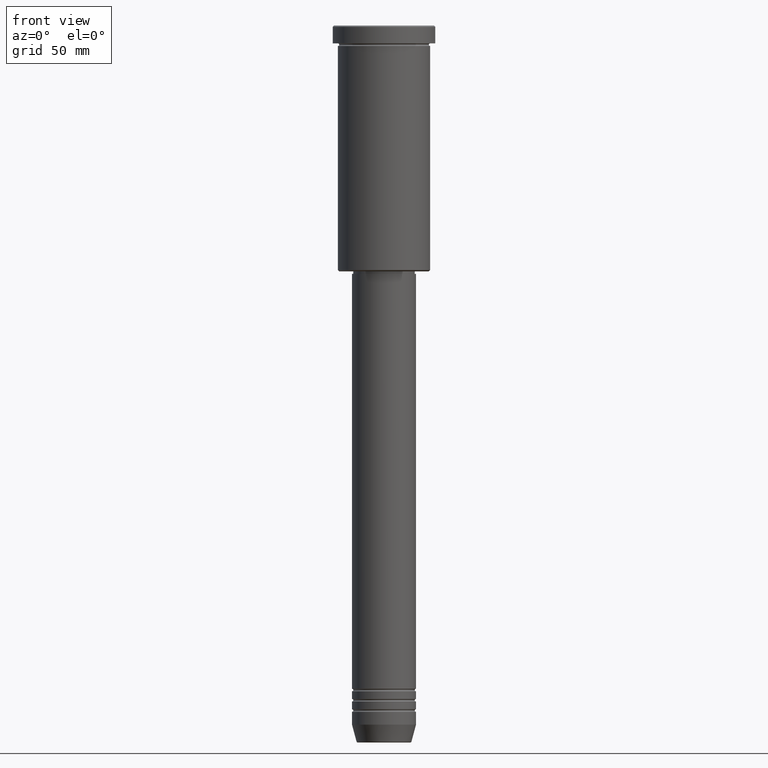
[diagram: clean part render]
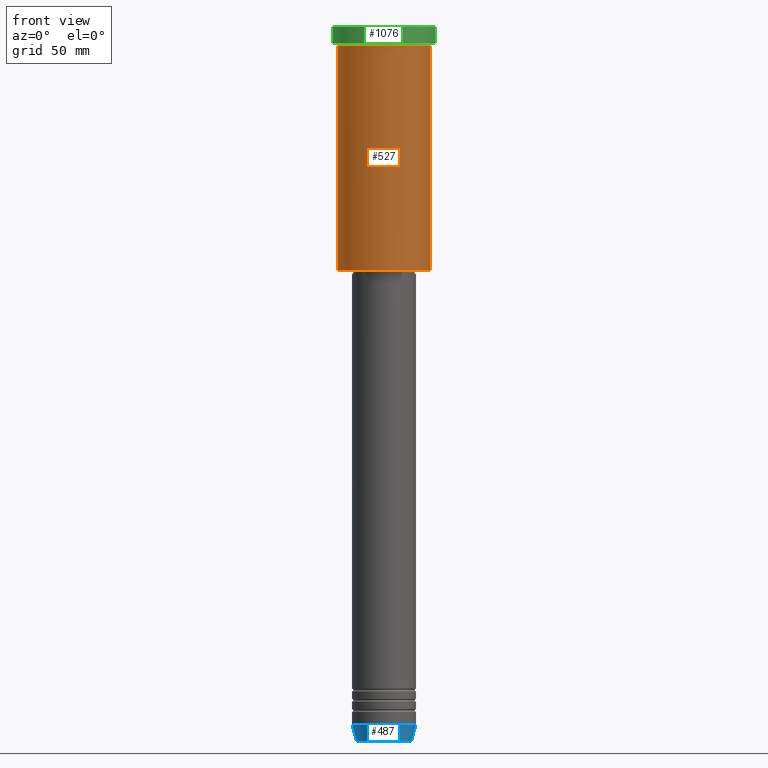
[diagram: same view with three faces highlighted in distinct colors, each labeled with its STEP entity id]
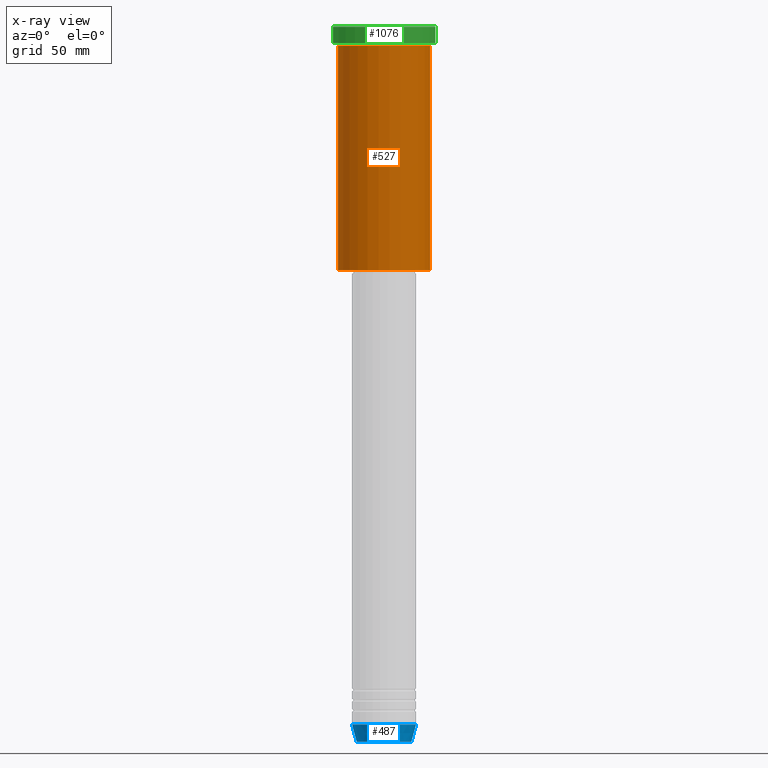
[diagram: x-ray of the same camera — body ghosted, the three highlighted faces saturated]
A machine part, front view with three faces highlighted in distinct colors.
The next image is the same camera in x-ray (body ghosted, the three faces saturated) — at least one of them is partly hidden behind the body in this view.
Their STEP definitions:

[orange] entity #527 — the highlighted cylindrical surface (partial cylindrical patch) has radius 18 mm, axis along (-0, -0, 1).
#6 = EDGE_CURVE ( 'NONE', #421, #385, #611, .T. ) ;
#16 = ORIENTED_EDGE ( 'NONE', *, *, #1075, .T. ) ;
#42 = EDGE_CURVE ( 'NONE', #421, #940, #1145, .T. ) ;
#56 = DIRECTION ( 'NONE',  ( 1.000000000000000000, 0.000000000000000000, 0.000000000000000000 ) ) ;
#128 = EDGE_LOOP ( 'NONE', ( #825, #354, #16, #582 ) ) ;
#146 = CARTESIAN_POINT ( 'NONE',  ( 18.00000000000000000, 0.000000000000000000, 0.000000000000000000 ) ) ;
#197 = CARTESIAN_POINT ( 'NONE',  ( 18.00000000000000000, 0.000000000000000000, -7.999999999999996447 ) ) ;
#253 = CARTESIAN_POINT ( 'NONE',  ( 0.000000000000000000, 0.000000000000000000, -95.49999999999990052 ) ) ;
#262 = DIRECTION ( 'NONE',  ( -0.000000000000000000, -0.000000000000000000, 1.000000000000000000 ) ) ;
#280 = AXIS2_PLACEMENT_3D ( 'NONE', #674, #767, #56 ) ;
#331 = CARTESIAN_POINT ( 'NONE',  ( -18.00000000000000000, 2.204364238465235428E-15, 0.000000000000000000 ) ) ;
#354 = ORIENTED_EDGE ( 'NONE', *, *, #6, .T. ) ;
#378 = CARTESIAN_POINT ( 'NONE',  ( -18.00000000000000000, 2.204364238465235428E-15, -7.999999999999996447 ) ) ;
#385 = VERTEX_POINT ( 'NONE', #622 ) ;
#392 = VECTOR ( 'NONE', #609, 1000.000000000000000 ) ;
#421 = VERTEX_POINT ( 'NONE', #918 ) ;
#516 = DIRECTION ( 'NONE',  ( -0.000000000000000000, -0.000000000000000000, 1.000000000000000000 ) ) ;
#527 = ADVANCED_FACE ( 'NONE', ( #682 ), #949, .T. ) ;
#582 = ORIENTED_EDGE ( 'NONE', *, *, #850, .F. ) ;
#609 = DIRECTION ( 'NONE',  ( -0.000000000000000000, -0.000000000000000000, 1.000000000000000000 ) ) ;
#611 = CIRCLE ( 'NONE', #902, 18.00000000000000000 ) ;
#619 = DIRECTION ( 'NONE',  ( -0.000000000000000000, -0.000000000000000000, 1.000000000000000000 ) ) ;
#622 = CARTESIAN_POINT ( 'NONE',  ( 18.00000000000000000, 0.000000000000000000, -95.49999999999990052 ) ) ;
#674 = CARTESIAN_POINT ( 'NONE',  ( 0.000000000000000000, 0.000000000000000000, 0.000000000000000000 ) ) ;
#682 = FACE_OUTER_BOUND ( 'NONE', #128, .T. ) ;
#767 = DIRECTION ( 'NONE',  ( -0.000000000000000000, -0.000000000000000000, 1.000000000000000000 ) ) ;
#795 = AXIS2_PLACEMENT_3D ( 'NONE', #811, #619, #1066 ) ;
#811 = CARTESIAN_POINT ( 'NONE',  ( 0.000000000000000000, 0.000000000000000000, -7.999999999999996447 ) ) ;
#825 = ORIENTED_EDGE ( 'NONE', *, *, #42, .F. ) ;
#850 = EDGE_CURVE ( 'NONE', #940, #908, #1158, .T. ) ;
#895 = DIRECTION ( 'NONE',  ( -1.000000000000000000, 0.000000000000000000, 0.000000000000000000 ) ) ;
#902 = AXIS2_PLACEMENT_3D ( 'NONE', #253, #262, #895 ) ;
#908 = VERTEX_POINT ( 'NONE', #197 ) ;
#918 = CARTESIAN_POINT ( 'NONE',  ( -18.00000000000000000, 2.204364238465235428E-15, -95.49999999999990052 ) ) ;
#940 = VERTEX_POINT ( 'NONE', #378 ) ;
#949 = CYLINDRICAL_SURFACE ( 'NONE', #280, 18.00000000000000000 ) ;
#1066 = DIRECTION ( 'NONE',  ( 1.000000000000000000, 0.000000000000000000, 0.000000000000000000 ) ) ;
#1075 = EDGE_CURVE ( 'NONE', #385, #908, #1147, .T. ) ;
#1145 = LINE ( 'NONE', #331, #392 ) ;
#1147 = LINE ( 'NONE', #146, #1178 ) ;
#1158 = CIRCLE ( 'NONE', #795, 18.00000000000000000 ) ;
#1178 = VECTOR ( 'NONE', #516, 1000.000000000000000 ) ;

[blue] entity #487 — the highlighted conical surface has half-angle 15 deg.
#3 = ORIENTED_EDGE ( 'NONE', *, *, #591, .F. ) ;
#49 = ORIENTED_EDGE ( 'NONE', *, *, #1053, .T. ) ;
#138 = ORIENTED_EDGE ( 'NONE', *, *, #552, .T. ) ;
#152 = CARTESIAN_POINT ( 'NONE',  ( -12.50000000000000000, 1.530808498934191521E-15, -273.0000000000000000 ) ) ;
#161 = DIRECTION ( 'NONE',  ( 0.2588190451025213501, 0.000000000000000000, 0.9659258262890680902 ) ) ;
#239 = CARTESIAN_POINT ( 'NONE',  ( 0.000000000000000000, 0.000000000000000000, -279.6294095225512706 ) ) ;
#267 = CARTESIAN_POINT ( 'NONE',  ( 0.000000000000000000, 0.000000000000000000, -273.0000000000000000 ) ) ;
#303 = VERTEX_POINT ( 'NONE', #1148 ) ;
#304 = ORIENTED_EDGE ( 'NONE', *, *, #353, .F. ) ;
#312 = CARTESIAN_POINT ( 'NONE',  ( 12.50000000000000000, 0.000000000000000000, -273.0000000000000000 ) ) ;
#353 = EDGE_CURVE ( 'NONE', #303, #928, #1060, .T. ) ;
#375 = CIRCLE ( 'NONE', #632, 12.50000000000000000 ) ;
#410 = LINE ( 'NONE', #698, #634 ) ;
#487 = ADVANCED_FACE ( 'NONE', ( #1078 ), #661, .T. ) ;
#494 = DIRECTION ( 'NONE',  ( -0.000000000000000000, -0.000000000000000000, 1.000000000000000000 ) ) ;
#534 = AXIS2_PLACEMENT_3D ( 'NONE', #239, #776, #670 ) ;
#552 = EDGE_CURVE ( 'NONE', #303, #993, #885, .T. ) ;
#591 = EDGE_CURVE ( 'NONE', #928, #600, #375, .T. ) ;
#600 = VERTEX_POINT ( 'NONE', #312 ) ;
#632 = AXIS2_PLACEMENT_3D ( 'NONE', #934, #494, #857 ) ;
#634 = VECTOR ( 'NONE', #161, 1000.000000000000000 ) ;
#661 = CONICAL_SURFACE ( 'NONE', #939, 12.50000000000000000, 0.2617993877991500740 ) ;
#670 = DIRECTION ( 'NONE',  ( 1.000000000000000000, 0.000000000000000000, 0.000000000000000000 ) ) ;
#698 = CARTESIAN_POINT ( 'NONE',  ( 12.50000000000000000, 0.000000000000000000, -273.0000000000000000 ) ) ;
#723 = EDGE_LOOP ( 'NONE', ( #304, #138, #49, #3 ) ) ;
#776 = DIRECTION ( 'NONE',  ( -0.000000000000000000, -0.000000000000000000, 1.000000000000000000 ) ) ;
#797 = DIRECTION ( 'NONE',  ( -0.2588190451025213501, 3.169619151431772337E-17, 0.9659258262890680902 ) ) ;
#823 = CARTESIAN_POINT ( 'NONE',  ( 10.72365507213719127, 0.000000000000000000, -279.6294095225512706 ) ) ;
#842 = DIRECTION ( 'NONE',  ( 1.000000000000000000, 0.000000000000000000, 0.000000000000000000 ) ) ;
#857 = DIRECTION ( 'NONE',  ( 1.000000000000000000, 0.000000000000000000, 0.000000000000000000 ) ) ;
#885 = CIRCLE ( 'NONE', #534, 10.72365507213719127 ) ;
#921 = VECTOR ( 'NONE', #797, 1000.000000000000000 ) ;
#923 = DIRECTION ( 'NONE',  ( -0.000000000000000000, -0.000000000000000000, 1.000000000000000000 ) ) ;
#928 = VERTEX_POINT ( 'NONE', #1017 ) ;
#934 = CARTESIAN_POINT ( 'NONE',  ( 0.000000000000000000, 0.000000000000000000, -273.0000000000000000 ) ) ;
#939 = AXIS2_PLACEMENT_3D ( 'NONE', #267, #923, #842 ) ;
#993 = VERTEX_POINT ( 'NONE', #823 ) ;
#1017 = CARTESIAN_POINT ( 'NONE',  ( -12.50000000000000000, 1.530808498934191521E-15, -273.0000000000000000 ) ) ;
#1053 = EDGE_CURVE ( 'NONE', #993, #600, #410, .T. ) ;
#1060 = LINE ( 'NONE', #152, #921 ) ;
#1078 = FACE_OUTER_BOUND ( 'NONE', #723, .T. ) ;
#1148 = CARTESIAN_POINT ( 'NONE',  ( -10.72365507213719127, 1.422038742429750516E-15, -279.6294095225512706 ) ) ;

[green] entity #1076 — the highlighted cylindrical surface (partial cylindrical patch) has radius 20 mm, axis along (-0, -0, 1).
#13 = CIRCLE ( 'NONE', #831, 20.00000000000000000 ) ;
#25 = CARTESIAN_POINT ( 'NONE',  ( 20.00000000000000000, 0.000000000000000000, 0.000000000000000000 ) ) ;
#34 = CARTESIAN_POINT ( 'NONE',  ( 20.00000000000000000, 0.000000000000000000, -6.999999999999995559 ) ) ;
#57 = DIRECTION ( 'NONE',  ( -0.000000000000000000, -0.000000000000000000, 1.000000000000000000 ) ) ;
#112 = DIRECTION ( 'NONE',  ( -0.000000000000000000, -0.000000000000000000, 1.000000000000000000 ) ) ;
#141 = CYLINDRICAL_SURFACE ( 'NONE', #281, 20.00000000000000000 ) ;
#168 = EDGE_LOOP ( 'NONE', ( #433, #1022, #1117, #503 ) ) ;
#213 = LINE ( 'NONE', #25, #888 ) ;
#268 = LINE ( 'NONE', #1172, #555 ) ;
#281 = AXIS2_PLACEMENT_3D ( 'NONE', #865, #57, #423 ) ;
#294 = DIRECTION ( 'NONE',  ( 1.000000000000000000, 0.000000000000000000, 0.000000000000000000 ) ) ;
#387 = CARTESIAN_POINT ( 'NONE',  ( -20.00000000000000000, 2.449293598294706513E-15, -6.999999999999995559 ) ) ;
#423 = DIRECTION ( 'NONE',  ( 1.000000000000000000, 0.000000000000000000, 0.000000000000000000 ) ) ;
#433 = ORIENTED_EDGE ( 'NONE', *, *, #821, .F. ) ;
#470 = DIRECTION ( 'NONE',  ( 1.000000000000000000, 0.000000000000000000, 0.000000000000000000 ) ) ;
#480 = VERTEX_POINT ( 'NONE', #387 ) ;
#503 = ORIENTED_EDGE ( 'NONE', *, *, #626, .T. ) ;
#555 = VECTOR ( 'NONE', #894, 1000.000000000000000 ) ;
#568 = DIRECTION ( 'NONE',  ( -0.000000000000000000, -0.000000000000000000, 1.000000000000000000 ) ) ;
#626 = EDGE_CURVE ( 'NONE', #1154, #883, #13, .T. ) ;
#628 = CARTESIAN_POINT ( 'NONE',  ( 20.00000000000000000, 0.000000000000000000, -0.4999999999999692468 ) ) ;
#649 = CARTESIAN_POINT ( 'NONE',  ( 0.000000000000000000, 0.000000000000000000, -6.999999999999995559 ) ) ;
#706 = AXIS2_PLACEMENT_3D ( 'NONE', #649, #568, #470 ) ;
#779 = CIRCLE ( 'NONE', #706, 20.00000000000000000 ) ;
#821 = EDGE_CURVE ( 'NONE', #480, #883, #268, .T. ) ;
#824 = DIRECTION ( 'NONE',  ( 0.000000000000000000, 0.000000000000000000, -1.000000000000000000 ) ) ;
#831 = AXIS2_PLACEMENT_3D ( 'NONE', #1122, #824, #294 ) ;
#865 = CARTESIAN_POINT ( 'NONE',  ( 0.000000000000000000, 0.000000000000000000, 0.000000000000000000 ) ) ;
#883 = VERTEX_POINT ( 'NONE', #1001 ) ;
#888 = VECTOR ( 'NONE', #112, 1000.000000000000000 ) ;
#894 = DIRECTION ( 'NONE',  ( -0.000000000000000000, -0.000000000000000000, 1.000000000000000000 ) ) ;
#945 = FACE_OUTER_BOUND ( 'NONE', #168, .T. ) ;
#950 = EDGE_CURVE ( 'NONE', #480, #1054, #779, .T. ) ;
#955 = EDGE_CURVE ( 'NONE', #1054, #1154, #213, .T. ) ;
#1001 = CARTESIAN_POINT ( 'NONE',  ( -20.00000000000000000, 2.449293598294706513E-15, -0.4999999999999692468 ) ) ;
#1022 = ORIENTED_EDGE ( 'NONE', *, *, #950, .T. ) ;
#1054 = VERTEX_POINT ( 'NONE', #34 ) ;
#1076 = ADVANCED_FACE ( 'NONE', ( #945 ), #141, .T. ) ;
#1117 = ORIENTED_EDGE ( 'NONE', *, *, #955, .T. ) ;
#1122 = CARTESIAN_POINT ( 'NONE',  ( 0.000000000000000000, 0.000000000000000000, -0.4999999999999692468 ) ) ;
#1154 = VERTEX_POINT ( 'NONE', #628 ) ;
#1172 = CARTESIAN_POINT ( 'NONE',  ( -20.00000000000000000, 2.449293598294706513E-15, 0.000000000000000000 ) ) ;